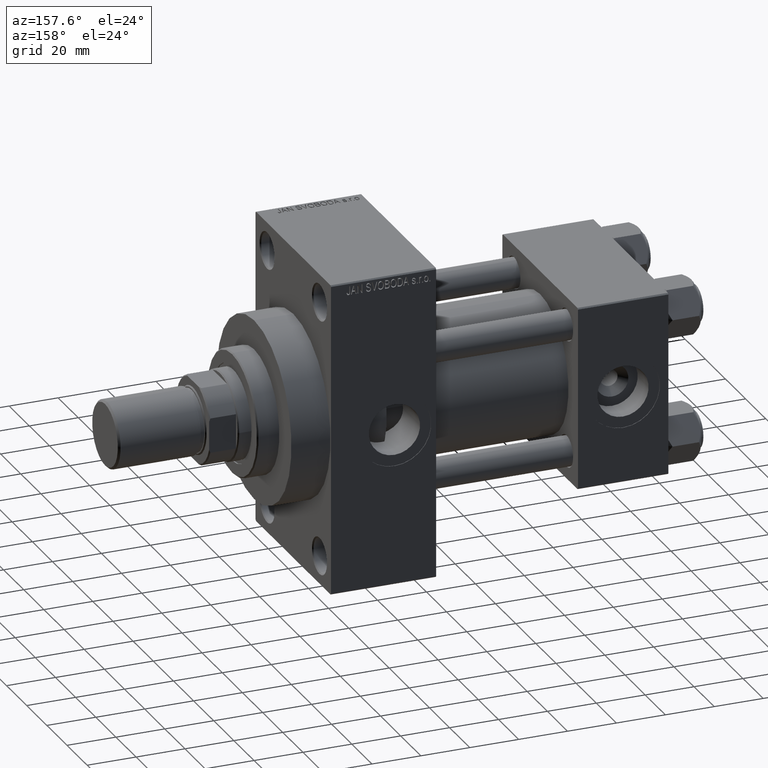
[diagram: clean part render]
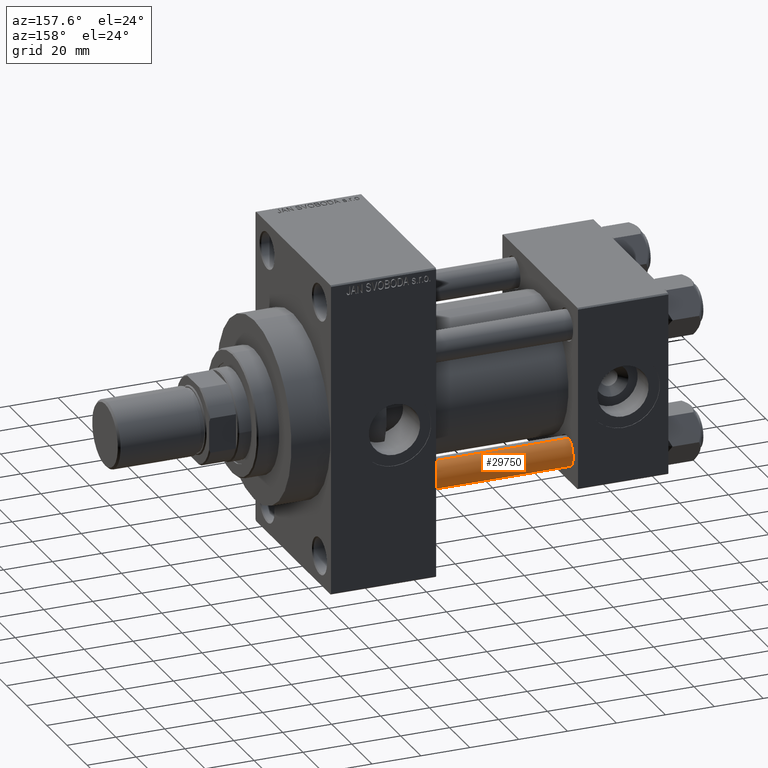
[diagram: same view with one face highlighted and labeled with its STEP entity id]
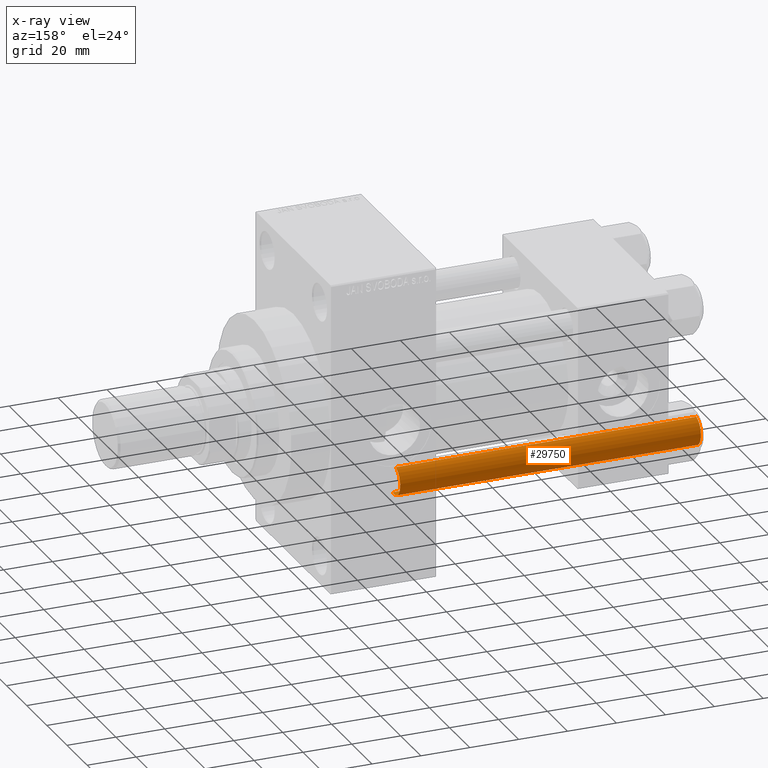
[diagram: x-ray of the same camera — body ghosted, the highlighted face saturated]
A machine part, auxiliary view. The second image highlights one B-rep face of the part: STEP entity #29750.
The next image is the same camera in x-ray: the body ghosted, the highlighted face saturated — about 0% of this face is hidden behind the body in this view.
In plain terms, the highlighted cylindrical surface (edge-blend (fillet) strip) has radius 6 mm, axis along (1, -0, 0).
Its self-contained STEP definition (entity closure, byte-faithful):
#167 = DIRECTION ( 'NONE',  ( -0.000000000000000000, -0.000000000000000000, -1.000000000000000000 ) ) ;
#1742 = VERTEX_POINT ( 'NONE', #17568 ) ;
#3785 = DIRECTION ( 'NONE',  ( -0.000000000000000000, -0.000000000000000000, -1.000000000000000000 ) ) ;
#7417 = VERTEX_POINT ( 'NONE', #40460 ) ;
#8051 = VECTOR ( 'NONE', #167, 1000.000000000000000 ) ;
#8248 = VECTOR ( 'NONE', #14033, 1000.000000000000000 ) ;
#8638 = CARTESIAN_POINT ( 'NONE',  ( 0.000000000000000000, 0.000000000000000000, 0.4999999999999865663 ) ) ;
#9420 = ORIENTED_EDGE ( 'NONE', *, *, #14175, .T. ) ;
#10599 = CARTESIAN_POINT ( 'NONE',  ( 0.000000000000000000, 0.000000000000000000, 124.0000000000000000 ) ) ;
#10750 = EDGE_CURVE ( 'NONE', #15691, #13173, #42937, .T. ) ;
#11478 = CARTESIAN_POINT ( 'NONE',  ( 0.000000000000000000, 0.000000000000000000, 123.5000000000000426 ) ) ;
#12516 = ORIENTED_EDGE ( 'NONE', *, *, #46455, .T. ) ;
#13173 = VERTEX_POINT ( 'NONE', #26993 ) ;
#14033 = DIRECTION ( 'NONE',  ( -0.000000000000000000, -0.000000000000000000, -1.000000000000000000 ) ) ;
#14175 = EDGE_CURVE ( 'NONE', #7417, #1742, #45487, .T. ) ;
#14763 = EDGE_LOOP ( 'NONE', ( #48893, #12516, #9420, #31030 ) ) ;
#15374 = FACE_OUTER_BOUND ( 'NONE', #14763, .T. ) ;
#15544 = CARTESIAN_POINT ( 'NONE',  ( 6.000000000000000888, 7.347880794884120722E-16, 124.0000000000000000 ) ) ;
#15691 = VERTEX_POINT ( 'NONE', #43249 ) ;
#17568 = CARTESIAN_POINT ( 'NONE',  ( -6.000000000000000888, 0.000000000000000000, 0.4999999999999865663 ) ) ;
#19026 = DIRECTION ( 'NONE',  ( 1.000000000000000000, 0.000000000000000000, 0.000000000000000000 ) ) ;
#20029 = DIRECTION ( 'NONE',  ( 0.000000000000000000, 0.000000000000000000, -1.000000000000000000 ) ) ;
#23990 = DIRECTION ( 'NONE',  ( -0.000000000000000000, -0.000000000000000000, 1.000000000000000000 ) ) ;
#26993 = CARTESIAN_POINT ( 'NONE',  ( 6.000000000000000888, 7.347880794884120722E-16, 123.5000000000000426 ) ) ;
#29362 = CARTESIAN_POINT ( 'NONE',  ( -6.000000000000000888, 0.000000000000000000, 124.0000000000000000 ) ) ;
#29424 = AXIS2_PLACEMENT_3D ( 'NONE', #8638, #23990, #35553 ) ;
#29750 = ADVANCED_FACE ( 'NONE', ( #15374 ), #41518, .T. ) ;
#29935 = EDGE_CURVE ( 'NONE', #15691, #1742, #45175, .T. ) ;
#31030 = ORIENTED_EDGE ( 'NONE', *, *, #29935, .F. ) ;
#34406 = LINE ( 'NONE', #15544, #8051 ) ;
#35553 = DIRECTION ( 'NONE',  ( 1.000000000000000000, 0.000000000000000000, 0.000000000000000000 ) ) ;
#37336 = AXIS2_PLACEMENT_3D ( 'NONE', #11478, #20029, #19026 ) ;
#40460 = CARTESIAN_POINT ( 'NONE',  ( 6.000000000000000888, 7.347880794884120722E-16, 0.4999999999999865663 ) ) ;
#41270 = DIRECTION ( 'NONE',  ( -1.000000000000000000, 0.000000000000000000, 0.000000000000000000 ) ) ;
#41518 = CYLINDRICAL_SURFACE ( 'NONE', #48419, 6.000000000000000888 ) ;
#42937 = CIRCLE ( 'NONE', #37336, 6.000000000000000888 ) ;
#43249 = CARTESIAN_POINT ( 'NONE',  ( -6.000000000000000888, 0.000000000000000000, 123.5000000000000426 ) ) ;
#45175 = LINE ( 'NONE', #29362, #8248 ) ;
#45487 = CIRCLE ( 'NONE', #29424, 6.000000000000000888 ) ;
#46455 = EDGE_CURVE ( 'NONE', #13173, #7417, #34406, .T. ) ;
#48419 = AXIS2_PLACEMENT_3D ( 'NONE', #10599, #3785, #41270 ) ;
#48893 = ORIENTED_EDGE ( 'NONE', *, *, #10750, .T. ) ;